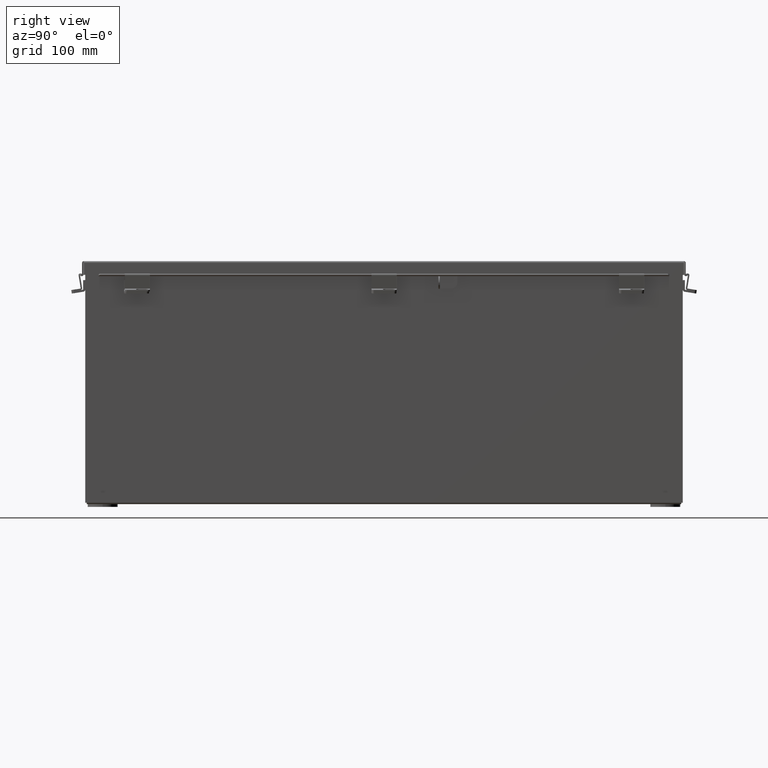
[diagram: clean part render]
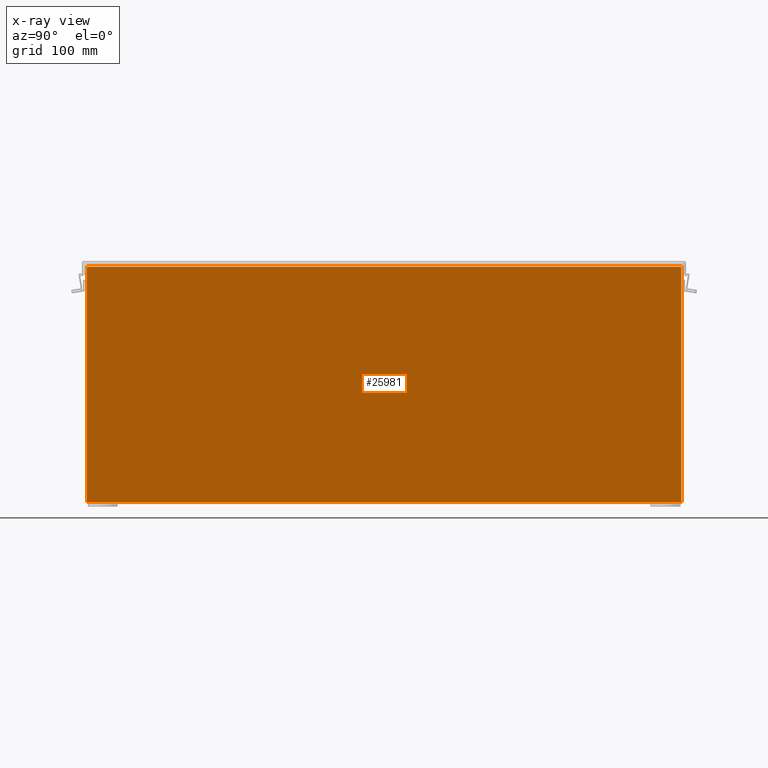
[diagram: x-ray — body ghosted, one internal face saturated and labeled with its STEP entity id]
A machine part, right view, then the same camera in x-ray: the body is ghosted and one INTERNAL B-rep face — a face not visible from any outside direction — is saturated and labeled: STEP entity #25981.
In plain terms, the highlighted planar face has unit normal (-1, 0, 0).
Its self-contained STEP definition (entity closure, byte-faithful):
#71 = LINE ( 'NONE', #9908, #2984 ) ;
#1655 = VECTOR ( 'NONE', #5037, 39.37007874015748100 ) ;
#2705 = ORIENTED_EDGE ( 'NONE', *, *, #6757, .F. ) ;
#2984 = VECTOR ( 'NONE', #25930, 39.37007874015748100 ) ;
#3538 = LINE ( 'NONE', #25003, #1655 ) ;
#4462 = ORIENTED_EDGE ( 'NONE', *, *, #16346, .F. ) ;
#5037 = DIRECTION ( 'NONE',  ( -1.282694510298949100E-031, 1.000000000000000000, -3.660694248911933500E-017 ) ) ;
#6633 = EDGE_LOOP ( 'NONE', ( #24898, #2705, #9132, #4462 ) ) ;
#6757 = EDGE_CURVE ( 'NONE', #12464, #18351, #21770, .T. ) ;
#9132 = ORIENTED_EDGE ( 'NONE', *, *, #15375, .F. ) ;
#9908 = CARTESIAN_POINT ( 'NONE',  ( 5.925300000000044400, 14.92529999999999600, 11.85060000000000000 ) ) ;
#10781 = CARTESIAN_POINT ( 'NONE',  ( 5.925300000000044400, 14.92529999999999600, 11.83759999999999800 ) ) ;
#11570 = CARTESIAN_POINT ( 'NONE',  ( 5.925300000000002700, 14.92529999999999800, 0.01299999999999956900 ) ) ;
#11904 = CARTESIAN_POINT ( 'NONE',  ( 5.925300000000002700, 0.0000000000000000000, -2.102669252623462500E-014 ) ) ;
#12464 = VERTEX_POINT ( 'NONE', #10781 ) ;
#12972 = CARTESIAN_POINT ( 'NONE',  ( 5.925300000000044400, 14.92529999999999800, 11.83759999999999800 ) ) ;
#13910 = DIRECTION ( 'NONE',  ( 3.503965158194251300E-015, 0.0000000000000000000, 1.000000000000000000 ) ) ;
#14070 = LINE ( 'NONE', #19997, #24070 ) ;
#14578 = CARTESIAN_POINT ( 'NONE',  ( 5.925300000000002700, -14.92529999999999800, 0.01299999999999956900 ) ) ;
#15361 = AXIS2_PLACEMENT_3D ( 'NONE', #11904, #25914, #13910 ) ;
#15375 = EDGE_CURVE ( 'NONE', #18986, #12464, #71, .T. ) ;
#16346 = EDGE_CURVE ( 'NONE', #22734, #18986, #3538, .T. ) ;
#16464 = VECTOR ( 'NONE', #22960, 39.37007874015748100 ) ;
#18351 = VERTEX_POINT ( 'NONE', #23564 ) ;
#18986 = VERTEX_POINT ( 'NONE', #11570 ) ;
#19997 = CARTESIAN_POINT ( 'NONE',  ( 5.925300000000002700, -14.92529999999999800, 0.0000000000000000000 ) ) ;
#20006 = EDGE_CURVE ( 'NONE', #18351, #22734, #14070, .T. ) ;
#21770 = LINE ( 'NONE', #12972, #16464 ) ;
#21880 = PLANE ( 'NONE',  #15361 ) ;
#22018 = DIRECTION ( 'NONE',  ( -3.503965158194252100E-015, -0.0000000000000000000, -1.000000000000000000 ) ) ;
#22553 = FACE_OUTER_BOUND ( 'NONE', #6633, .T. ) ;
#22734 = VERTEX_POINT ( 'NONE', #14578 ) ;
#22960 = DIRECTION ( 'NONE',  ( -0.0000000000000000000, -1.000000000000000000, -0.0000000000000000000 ) ) ;
#23564 = CARTESIAN_POINT ( 'NONE',  ( 5.925300000000044400, -14.92529999999999800, 11.83759999999999800 ) ) ;
#24070 = VECTOR ( 'NONE', #22018, 39.37007874015748100 ) ;
#24898 = ORIENTED_EDGE ( 'NONE', *, *, #20006, .F. ) ;
#25003 = CARTESIAN_POINT ( 'NONE',  ( 5.925300000000002700, -14.92529999999999800, 0.01300000000000011600 ) ) ;
#25914 = DIRECTION ( 'NONE',  ( -1.000000000000000000, 0.0000000000000000000, 3.503965158194251300E-015 ) ) ;
#25930 = DIRECTION ( 'NONE',  ( 3.503965158194252100E-015, -1.844192188523290500E-016, 1.000000000000000000 ) ) ;
#25981 = ADVANCED_FACE ( 'NONE', ( #22553 ), #21880, .T. ) ;